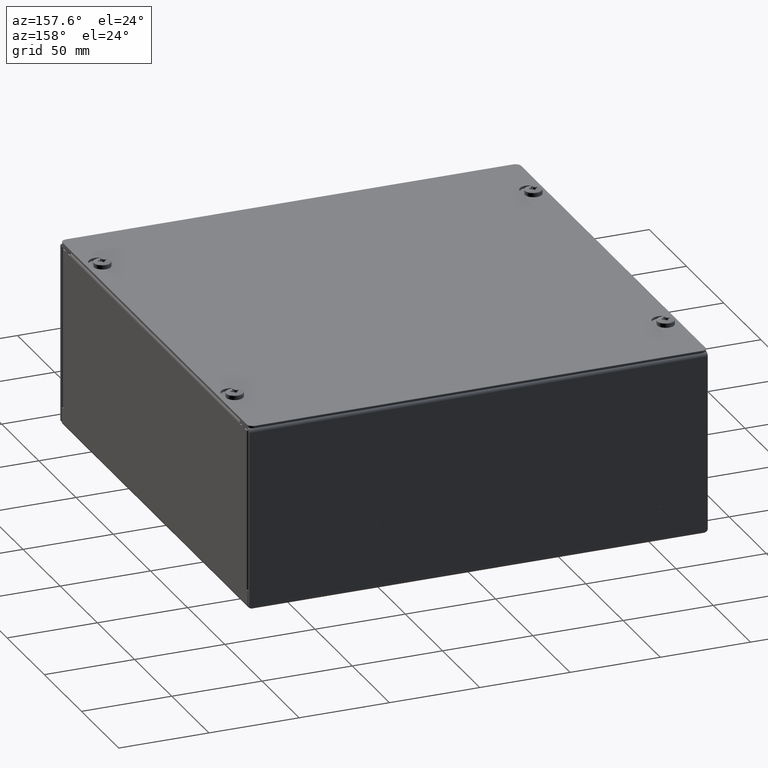
[diagram: clean part render]
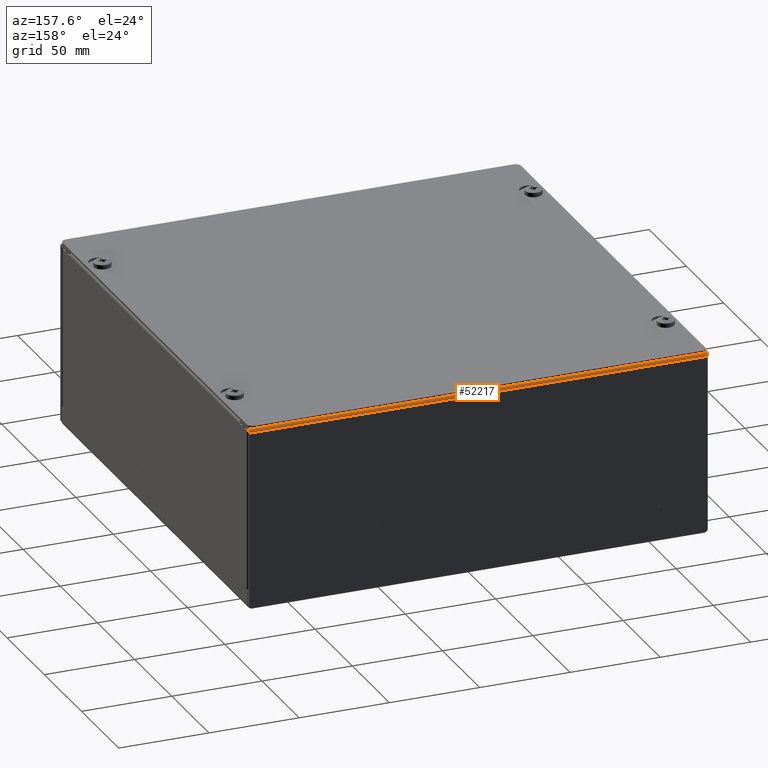
[diagram: same view with one face highlighted and labeled with its STEP entity id]
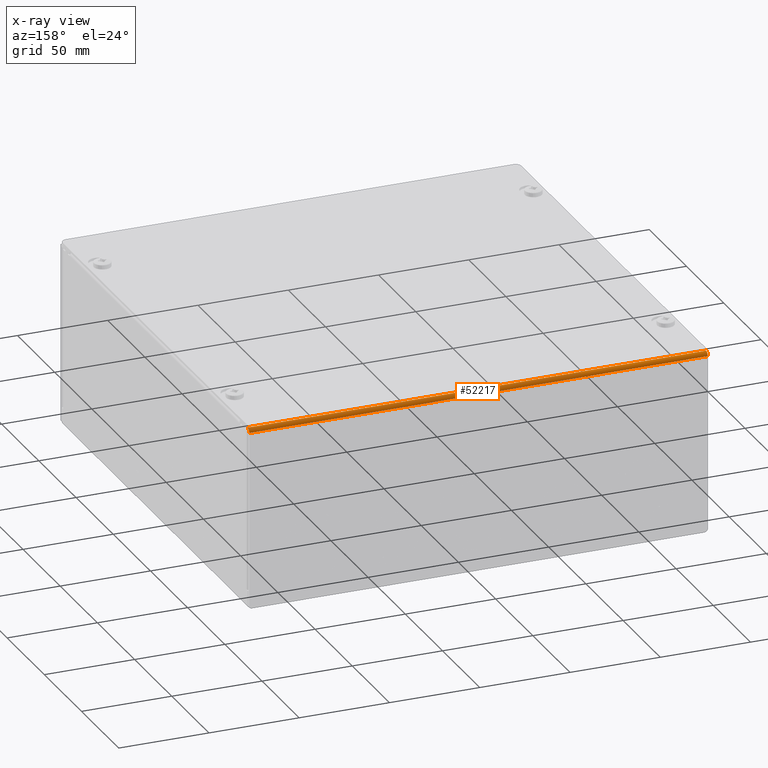
[diagram: x-ray of the same camera — body ghosted, the highlighted face saturated]
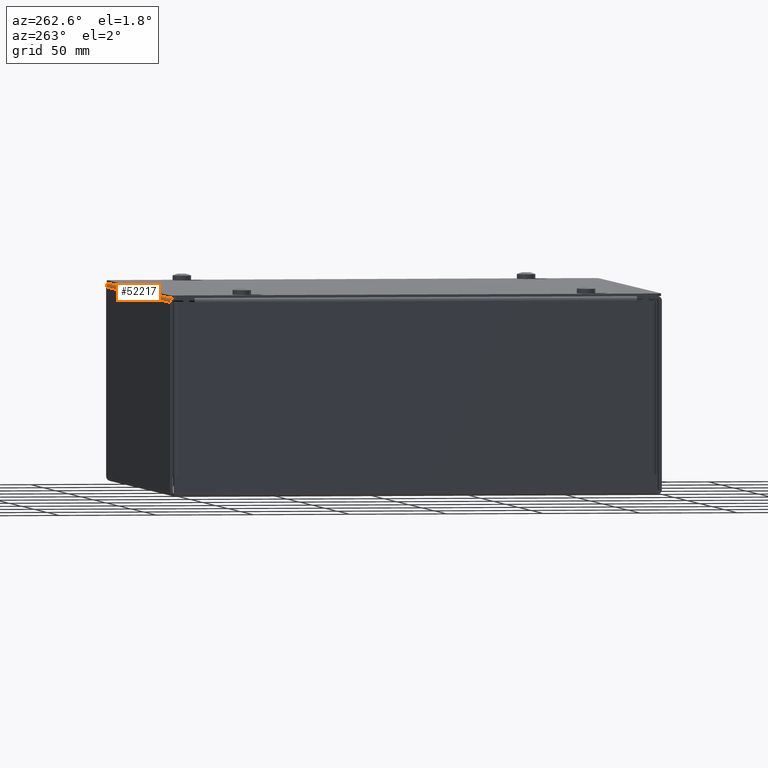
[diagram: same view with one face highlighted and labeled with its STEP entity id]
A machine part, auxiliary view. The second image highlights one B-rep face of the part: STEP entity #52217.
The next image is the same camera in x-ray: the body ghosted, the highlighted face saturated — about 0% of this face is hidden behind the body in this view.
A second angle (auxiliary view) of the same face is appended — the face is thin or edge-on in the first view.
In plain terms, the highlighted cylindrical surface (edge-blend (fillet) strip) has radius 2.1844 mm, axis along (1, -0, 0).
Its self-contained STEP definition (entity closure, byte-faithful):
#6782=FACE_OUTER_BOUND('',#9682,.T.);
#9682=EDGE_LOOP('',(#38876,#38877,#38878,#38879));
#13292=LINE('',#71475,#18797);
#13293=LINE('',#71479,#18798);
#18797=VECTOR('',#60294,0.393700787401575);
#18798=VECTOR('',#60297,0.393700787401575);
#23697=CIRCLE('',#55603,0.0859999999999997);
#23698=CIRCLE('',#55604,0.0859999999999997);
#24021=VERTEX_POINT('',#68944);
#24035=VERTEX_POINT('',#68984);
#24837=VERTEX_POINT('',#71476);
#24838=VERTEX_POINT('',#71478);
#30273=EDGE_CURVE('',#24035,#24021,#13292,.T.);
#30274=EDGE_CURVE('',#24837,#24035,#23697,.T.);
#30275=EDGE_CURVE('',#24838,#24837,#13293,.T.);
#30276=EDGE_CURVE('',#24021,#24838,#23698,.T.);
#38876=ORIENTED_EDGE('',*,*,#30273,.F.);
#38877=ORIENTED_EDGE('',*,*,#30274,.F.);
#38878=ORIENTED_EDGE('',*,*,#30275,.F.);
#38879=ORIENTED_EDGE('',*,*,#30276,.F.);
#51622=CYLINDRICAL_SURFACE('',#55602,0.086);
#52217=ADVANCED_FACE('',(#6782),#51622,.T.);
#55602=AXIS2_PLACEMENT_3D('',#71474,#60292,#60293);
#55603=AXIS2_PLACEMENT_3D('',#71477,#60295,#60296);
#55604=AXIS2_PLACEMENT_3D('',#71480,#60298,#60299);
#60292=DIRECTION('center_axis',(1.,-5.83993718718216E-33,3.50384057212165E-81));
#60293=DIRECTION('ref_axis',(5.83993718718216E-33,1.,-5.99979153853244E-49));
#60294=DIRECTION('',(-1.,5.83993718718181E-33,-6.6036212808906E-32));
#60295=DIRECTION('center_axis',(1.,-5.83993718718216E-33,3.50384057212165E-81));
#60296=DIRECTION('ref_axis',(0.,1.,2.43960378969088E-14));
#60297=DIRECTION('',(1.,-1.75198115615465E-32,0.));
#60298=DIRECTION('center_axis',(-1.,5.83993718718216E-33,-3.50384057212165E-81));
#60299=DIRECTION('ref_axis',(0.,8.13201263230295E-15,1.));
#68944=CARTESIAN_POINT('',(-4.99999999999999,4.914,4.));
#68984=CARTESIAN_POINT('',(5.,4.914,4.));
#71474=CARTESIAN_POINT('Origin',(-2.3050232077808E-34,4.914,3.914));
#71475=CARTESIAN_POINT('',(-1.31128703695885E-16,4.914,4.));
#71476=CARTESIAN_POINT('',(5.,5.,3.914));
#71477=CARTESIAN_POINT('Origin',(5.,4.914,3.914));
#71478=CARTESIAN_POINT('',(-5.,5.,3.914));
#71479=CARTESIAN_POINT('',(-2.5,5.,3.914));
#71480=CARTESIAN_POINT('Origin',(-4.99999999999999,4.914,3.914));